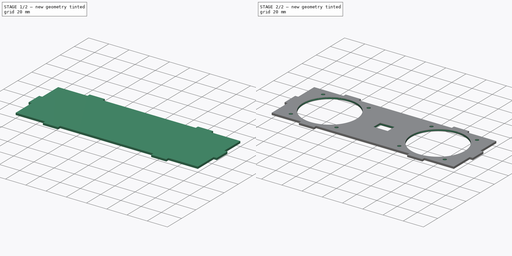
[diagram: build sequence overview — one tinted view per stage of 2, left to right]
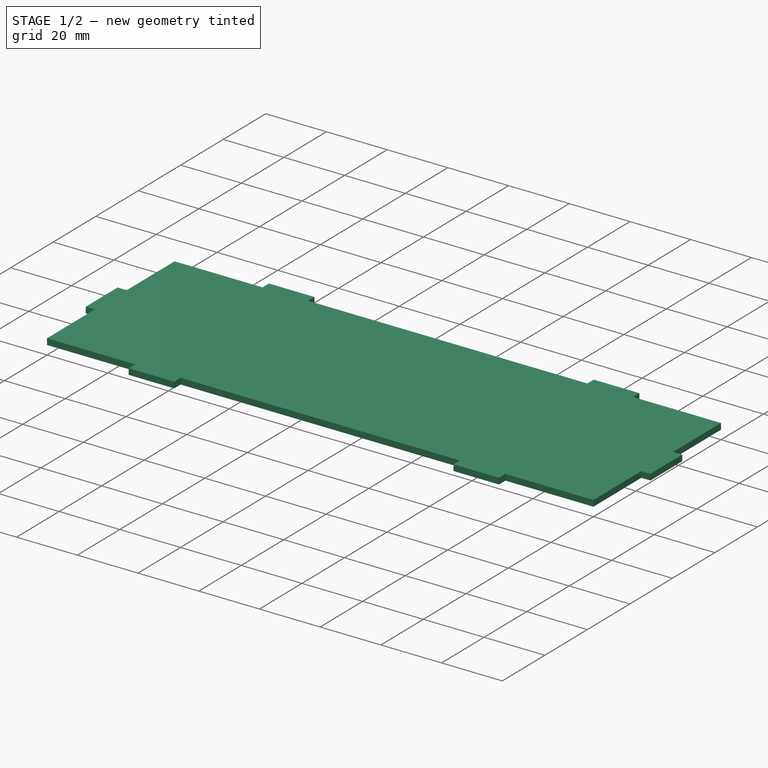
[diagram: stage 1 of 2 — iso view after this stage's code; geometry added in this stage tinted green]
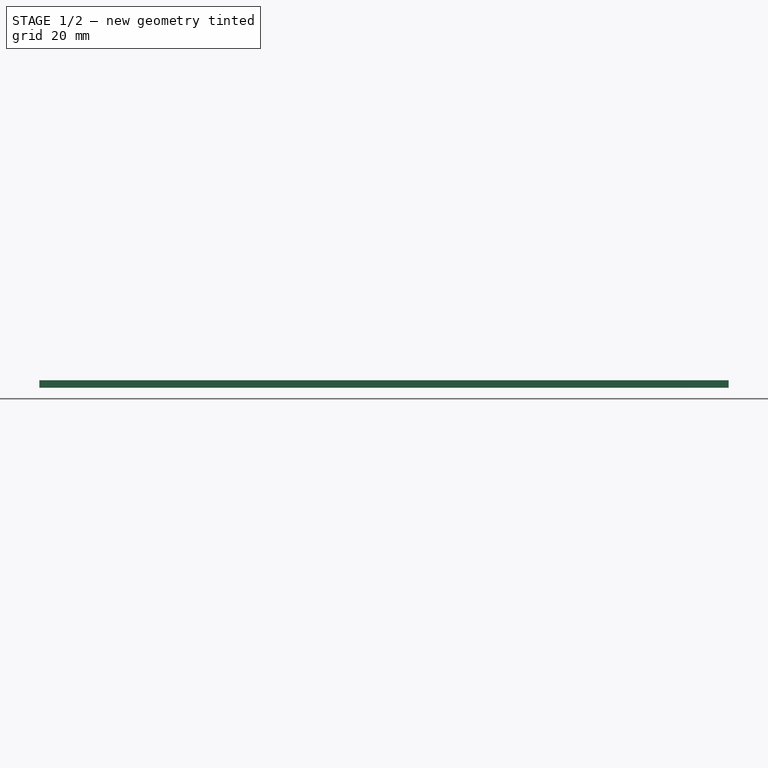
[diagram: stage 1 of 2 — front view after this stage's code; geometry added in this stage tinted green]
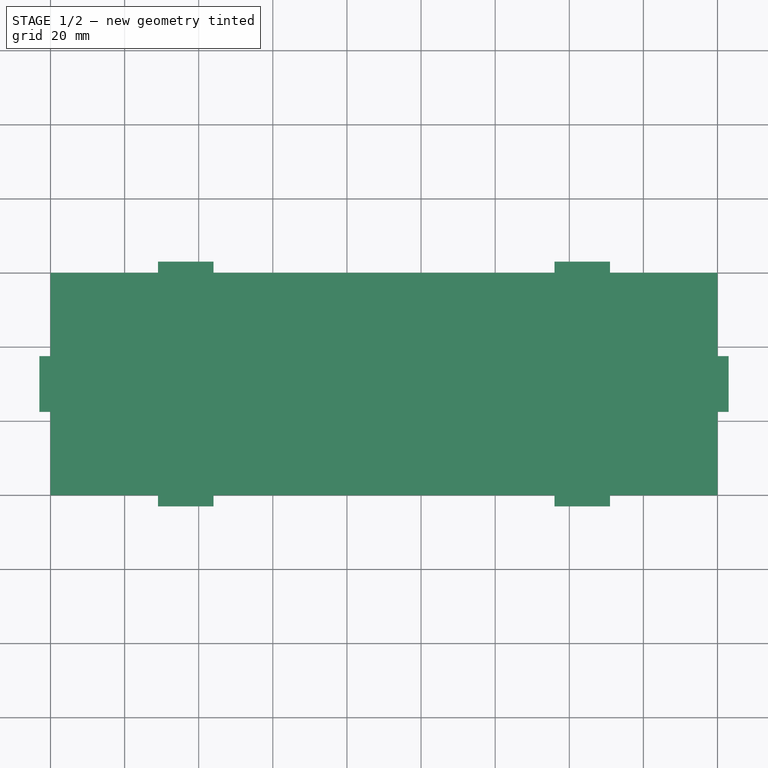
[diagram: stage 1 of 2 — top view after this stage's code; geometry added in this stage tinted green]
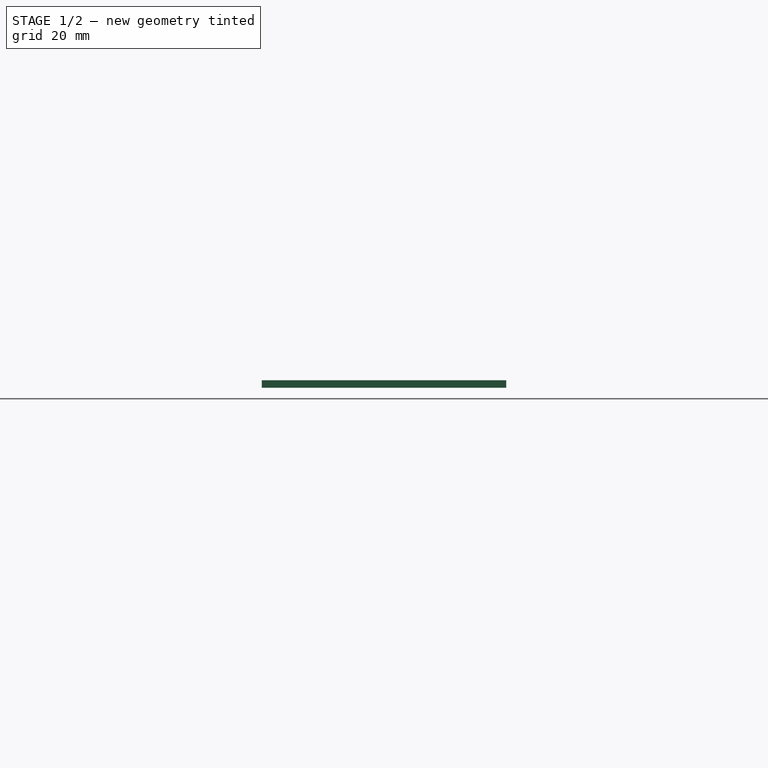
[diagram: stage 1 of 2 — right view after this stage's code; geometry added in this stage tinted green]
FCSTD DOCUMENT  (FreeCAD 1.0R39109 (Git))
Label: aimiya_bt_spk_front
License: All rights reserved
LicenseURL: https://en.wikipedia.org/wiki/All_rights_reserved
objects: Sketcher::SketchObject×2, PartDesign::Pad×1, PartDesign::Groove×1, PartDesign::Body×1
note: 11 computed .brp shape members not serialized (recipe doc carries the construction recipe); baked Part::Feature solids carry a one-line shape summary decoded from their .brp

FEATURE [Sketcher::SketchObject] Sketch  label="holes"
  ArcFitTolerance = 1e-06
  AttachmentSupport = -> [XY_Plane001]
  FullyConstrained = true
  MakeInternals = false
  MapMode = 5
  sketch-geometry (34):
    g0: LineSegment [constr] StartX=0 StartY=0 StartZ=0 EndX=180 EndY=0 EndZ=0
    g1: LineSegment [constr] StartX=180 StartY=0 StartZ=0 EndX=180 EndY=60 EndZ=0
    g2: LineSegment [constr] StartX=180 StartY=60 StartZ=0 EndX=0 EndY=60 EndZ=0
    g3: LineSegment [constr] StartX=0 StartY=60 StartZ=0 EndX=0 EndY=0 EndZ=0
    g4: LineSegment [constr] StartX=0 StartY=30 StartZ=0 EndX=180 EndY=30 EndZ=0
    g5: LineSegment [constr] StartX=90 StartY=60 StartZ=0 EndX=90 EndY=0 EndZ=0
    g6: LineSegment [constr] StartX=10 StartY=3.5 StartZ=0 EndX=63 EndY=3.5 EndZ=0
    g7: LineSegment [constr] StartX=63 StartY=3.5 StartZ=0 EndX=63 EndY=56.5 EndZ=0
    g8: LineSegment [constr] StartX=63 StartY=56.5 StartZ=0 EndX=10 EndY=56.5 EndZ=0
    g9: LineSegment [constr] StartX=10 StartY=56.5 StartZ=0 EndX=10 EndY=3.5 EndZ=0
    g10: GeomPoint [constr] X=36.5 Y=30 Z=0
    g11: Circle CenterX=14 CenterY=52.7541 CenterZ=0 NormalX=0 NormalY=0 NormalZ=1 AngleXU=0 Radius=1.75
    g12: LineSegment [constr] StartX=36.5 StartY=56.5 StartZ=0 EndX=36.5 EndY=3.5 EndZ=0
    g13: Circle CenterX=59 CenterY=52.7541 CenterZ=0 NormalX=0 NormalY=0 NormalZ=1 AngleXU=0 Radius=1.75
    g14: Circle CenterX=14 CenterY=7.24588 CenterZ=0 NormalX=0 NormalY=0 NormalZ=1 AngleXU=0 Radius=1.75
    g15: Circle CenterX=59 CenterY=7.24588 CenterZ=0 NormalX=0 NormalY=0 NormalZ=1 AngleXU=0 Radius=1.75
    g16: Circle CenterX=36.5 CenterY=30 CenterZ=0 NormalX=0 NormalY=0 NormalZ=1 AngleXU=0 Radius=26.5
    g17: LineSegment [constr] StartX=180 StartY=30 StartZ=0 EndX=0 EndY=30 EndZ=0
    g18: LineSegment [constr] StartX=170 StartY=3.5 StartZ=0 EndX=117 EndY=3.5 EndZ=0
    g19: LineSegment [constr] StartX=117 StartY=3.5 StartZ=0 EndX=117 EndY=56.5 EndZ=0
    g20: LineSegment [constr] StartX=117 StartY=56.5 StartZ=0 EndX=170 EndY=56.5 EndZ=0
    g21: LineSegment [constr] StartX=170 StartY=56.5 StartZ=0 EndX=170 EndY=3.5 EndZ=0
    g22: GeomPoint [constr] X=143.5 Y=30 Z=0
    g23: Circle CenterX=166 CenterY=52.7541 CenterZ=0 NormalX=0 NormalY=0 NormalZ=1 AngleXU=0 Radius=1.75
    g24: LineSegment [constr] StartX=143.5 StartY=56.5 StartZ=0 EndX=143.5 EndY=3.5 EndZ=0
    g25: Circle CenterX=121 CenterY=52.7541 CenterZ=0 NormalX=0 NormalY=0 NormalZ=1 AngleXU=0 Radius=1.75
    g26: Circle CenterX=166 CenterY=7.24588 CenterZ=0 NormalX=0 NormalY=0 NormalZ=1 AngleXU=0 Radius=1.75
    g27: Circle CenterX=121 CenterY=7.24588 CenterZ=0 NormalX=0 NormalY=0 NormalZ=1 AngleXU=0 Radius=1.75
    g28: Circle CenterX=143.5 CenterY=30 CenterZ=0 NormalX=0 NormalY=0 NormalZ=1 AngleXU=0 Radius=26.5
    g29: LineSegment StartX=83 StartY=25.25 StartZ=0 EndX=97 EndY=25.25 EndZ=0
    g30: LineSegment StartX=97 StartY=25.25 StartZ=0 EndX=97 EndY=34.75 EndZ=0
    g31: LineSegment StartX=97 StartY=34.75 StartZ=0 EndX=83 EndY=34.75 EndZ=0
    g32: LineSegment StartX=83 StartY=34.75 StartZ=0 EndX=83 EndY=25.25 EndZ=0
    g33: GeomPoint [constr] X=90 Y=30 Z=0
  constraints (76):
    c: Coincident(g0,g1)
    c: Coincident(g1,g2)
    c: Coincident(g2,g3)
    c: Coincident(g3,g0)
    c: Horizontal(g0)
    c: Horizontal(g2)
    c: Vertical(g1)
    c: Vertical(g3)
    c: Coincident(g0,g-1)
    c: DistanceX(g0,g0) = 180
    c: DistanceY(g3,g3) = 60
    c: Symmetric(g3,g3,g4)
    c: Symmetric(g1,g1,g4)
    c: Symmetric(g2,g2,g5)
    c: Symmetric(g0,g0,g5)
    c: Coincident(g6,g7)
    c: Coincident(g7,g8)
    c: Coincident(g8,g9)
    c: Coincident(g9,g6)
    c: Horizontal(g6)
    c: Horizontal(g8)
    c: Vertical(g7)
    c: Vertical(g9)
    c: Symmetric(g8,g6,g10)
    c: Distance(g7,g9) = 53
    c: Distance(g6,g8) = 53
    c: PointOnObject(g10,g4)
    c: Distance(g3,g9) = 10
    c: Diameter(g11) = 3.5
    c: Symmetric(g8,g8,g12)
    c: Symmetric(g6,g6,g12)
    c: Distance(g11,g10) = 32
    c: Distance(g11,g12) = 22.5
    c: Equal(g11,g13)
    c: Symmetric(g11,g13,g12)
    c: Equal(g11,g14)
    c: Symmetric(g11,g14,g4)
    c: Equal(g14,g15)
    c: Symmetric(g14,g15,g12)
    c: Coincident(g16,g10)
    c: PointOnObject(g12,g16)
    c: Symmetric(g4,g17,g5)
    c: Symmetric(g4,g17,g5)
    c: Symmetric(g6,g18,g5)
    c: Symmetric(g6,g18,g5)
    c: Symmetric(g7,g19,g5)
    c: Symmetric(g7,g19,g5)
    c: Symmetric(g8,g20,g5)
    c: Symmetric(g8,g20,g5)
    c: Symmetric(g9,g21,g5)
    c: Symmetric(g9,g21,g5)
    c: Symmetric(g10,g22,g5)
    c: Equal(g11,g23)
    c: Symmetric(g11,g23,g5)
    c: Symmetric(g12,g24,g5)
    c: Symmetric(g12,g24,g5)
    c: Equal(g13,g25)
    c: Symmetric(g13,g25,g5)
    c: Equal(g14,g26)
    c: Symmetric(g14,g26,g5)
    c: Equal(g15,g27)
    c: Symmetric(g15,g27,g5)
    c: Equal(g16,g28)
    c: Symmetric(g16,g28,g5)
    c: Coincident(g29,g30)
    c: Coincident(g30,g31)
    c: Coincident(g31,g32)
    c: Coincident(g32,g29)
    c: Horizontal(g29)
    c: Horizontal(g31)
    c: Vertical(g30)
    c: Vertical(g32)
    c: Symmetric(g31,g29,g33)
    c: Distance(g30,g32) = 14
    c: Distance(g29,g31) = 9.5
    c: Symmetric(g4,g4,g33)
FEATURE [Sketcher::SketchObject] Sketch001
  ArcFitTolerance = 1e-06
  AttachmentSupport = -> [XY_Plane001]
  FullyConstrained = true
  MakeInternals = false
  MapMode = 5
  sketch-geometry (33):
    g0: LineSegment StartX=0 StartY=0 StartZ=0 EndX=180 EndY=0 EndZ=0
    g1: LineSegment StartX=180 StartY=0 StartZ=0 EndX=180 EndY=60 EndZ=0
    g2: LineSegment StartX=180 StartY=60 StartZ=0 EndX=0 EndY=60 EndZ=0
    g3: LineSegment StartX=0 StartY=60 StartZ=0 EndX=0 EndY=0 EndZ=0
    g4: LineSegment [constr] StartX=0 StartY=30 StartZ=0 EndX=180 EndY=30 EndZ=0
    g5: LineSegment [constr] StartX=90 StartY=60 StartZ=0 EndX=90 EndY=0 EndZ=0
    g6: LineSegment [constr] StartX=36.5 StartY=60 StartZ=0 EndX=36.5 EndY=0 EndZ=0
    g7: LineSegment StartX=29 StartY=60 StartZ=0 EndX=29 EndY=63 EndZ=0
    g8: LineSegment StartX=29 StartY=63 StartZ=0 EndX=44 EndY=63 EndZ=0
    g9: LineSegment StartX=44 StartY=60 StartZ=0 EndX=44 EndY=63 EndZ=0
    g10: LineSegment StartX=29 StartY=60 StartZ=0 EndX=44 EndY=60 EndZ=0
    g11: LineSegment [constr] StartX=36.5 StartY=63 StartZ=0 EndX=36.5 EndY=60 EndZ=0
    g12: LineSegment StartX=29 StartY=3e-16 StartZ=0 EndX=29 EndY=-3 EndZ=0
    g13: LineSegment StartX=29 StartY=-3 StartZ=0 EndX=44 EndY=-3 EndZ=0
    g14: LineSegment StartX=44 StartY=4.6e-15 StartZ=0 EndX=44 EndY=-3 EndZ=0
    g15: LineSegment StartX=29 StartY=3e-16 StartZ=0 EndX=44 EndY=4.6e-15 EndZ=0
    g16: LineSegment StartX=151 StartY=60 StartZ=0 EndX=151 EndY=63 EndZ=0
    g17: LineSegment StartX=151 StartY=63 StartZ=0 EndX=136 EndY=63 EndZ=0
    g18: LineSegment StartX=136 StartY=60 StartZ=0 EndX=136 EndY=63 EndZ=0
    g19: LineSegment StartX=151 StartY=60 StartZ=0 EndX=136 EndY=60 EndZ=0
    g20: LineSegment StartX=151 StartY=3e-16 StartZ=0 EndX=151 EndY=-3 EndZ=0
    g21: LineSegment StartX=151 StartY=-3 StartZ=0 EndX=136 EndY=-3 EndZ=0
    g22: LineSegment StartX=136 StartY=4.6e-15 StartZ=0 EndX=136 EndY=-3 EndZ=0
    g23: LineSegment StartX=151 StartY=3e-16 StartZ=0 EndX=136 EndY=4.6e-15 EndZ=0
    g24: LineSegment StartX=0 StartY=37.5 StartZ=0 EndX=-3 EndY=37.5 EndZ=0
    g25: LineSegment StartX=-3 StartY=37.5 StartZ=0 EndX=-3 EndY=22.5 EndZ=0
    g26: LineSegment StartX=-3 StartY=22.5 StartZ=0 EndX=0 EndY=22.5 EndZ=0
    g27: LineSegment [constr] StartX=-3 StartY=30 StartZ=0 EndX=0 EndY=30 EndZ=0
    g28: LineSegment StartX=0 StartY=37.5 StartZ=0 EndX=0 EndY=22.5 EndZ=0
    g29: LineSegment StartX=180 StartY=37.5 StartZ=0 EndX=183 EndY=37.5 EndZ=0
    g30: LineSegment StartX=183 StartY=37.5 StartZ=0 EndX=183 EndY=22.5 EndZ=0
    g31: LineSegment StartX=183 StartY=22.5 StartZ=0 EndX=180 EndY=22.5 EndZ=0
    g32: LineSegment StartX=180 StartY=37.5 StartZ=0 EndX=180 EndY=22.5 EndZ=0
  constraints (79):
    c: Coincident(g0,g1)
    c: Coincident(g1,g2)
    c: Coincident(g2,g3)
    c: Coincident(g3,g0)
    c: Horizontal(g0)
    c: Horizontal(g2)
    c: Vertical(g1)
    c: Vertical(g3)
    c: Distance(g1,g3) = 180
    c: Distance(g0,g2) = 60
    c: Coincident(g0,g-1)
    c: Symmetric(g3,g3,g4)
    c: Symmetric(g1,g1,g4)
    c: Symmetric(g2,g2,g5)
    c: Symmetric(g0,g0,g5)
    c: PointOnObject(g6,g2)
    c: PointOnObject(g6,g0)
    c: Vertical(g6)
    c: Distance(g5,g6) = 53.5
    c: Distance(g7) = 3
    c: Vertical(g7)
    c: PointOnObject(g7,g2)
    c: Distance(g8) = 15
    c: Horizontal(g8)
    c: Coincident(g8,g7)
    c: Distance(g9) = 3
    c: Vertical(g9)
    c: Coincident(g8,g9)
    c: Coincident(g10,g7)
    c: Coincident(g10,g9)
    c: Vertical(g11)
    c: Symmetric(g8,g8,g11)
    c: Coincident(g11,g6)
    c: Symmetric(g7,g12,g4)
    c: Symmetric(g7,g12,g4)
    c: Symmetric(g8,g13,g4)
    c: Symmetric(g8,g13,g4)
    c: Symmetric(g9,g14,g4)
    c: Symmetric(g9,g14,g4)
    c: Symmetric(g10,g15,g4)
    c: Symmetric(g10,g15,g4)
    c: Symmetric(g7,g16,g5)
    c: Symmetric(g7,g16,g5)
    c: Symmetric(g8,g17,g5)
    c: Symmetric(g8,g17,g5)
    c: Symmetric(g9,g18,g5)
    c: Symmetric(g9,g18,g5)
    c: Symmetric(g10,g19,g5)
    c: Symmetric(g10,g19,g5)
    c: Symmetric(g12,g20,g5)
    c: Symmetric(g12,g20,g5)
    c: Symmetric(g13,g21,g5)
    c: Symmetric(g13,g21,g5)
    c: Symmetric(g14,g22,g5)
    c: Symmetric(g14,g22,g5)
    c: Symmetric(g15,g23,g5)
    c: Symmetric(g15,g23,g5)
    c: Distance(g24) = 3
    c: Horizontal(g24)
    c: PointOnObject(g24,g3)
    c: Distance(g25) = 15
    c: Vertical(g25)
    c: Coincident(g25,g24)
    c: Horizontal(g26)
    c: Coincident(g26,g25)
    c: PointOnObject(g26,g3)
    c: Horizontal(g27)
    c: Symmetric(g25,g25,g27)
    c: Coincident(g27,g4)
    c: Coincident(g28,g24)
    c: Coincident(g28,g26)
    c: Symmetric(g24,g29,g5)
    c: Symmetric(g24,g29,g5)
    c: Symmetric(g25,g30,g5)
    c: Symmetric(g25,g30,g5)
    c: Symmetric(g26,g31,g5)
    c: Symmetric(g26,g31,g5)
    c: Symmetric(g28,g32,g5)
    c: Symmetric(g28,g32,g5)
FEATURE [PartDesign::Pad] Pad
  Direction = (0,0,1)
  Length = 2
  Length2 = 10
  Profile = -> Sketch001
  ReferenceAxis = -> Sketch001 [N_Axis]
  Refine = true
  Suppressed = false
  Type = 0
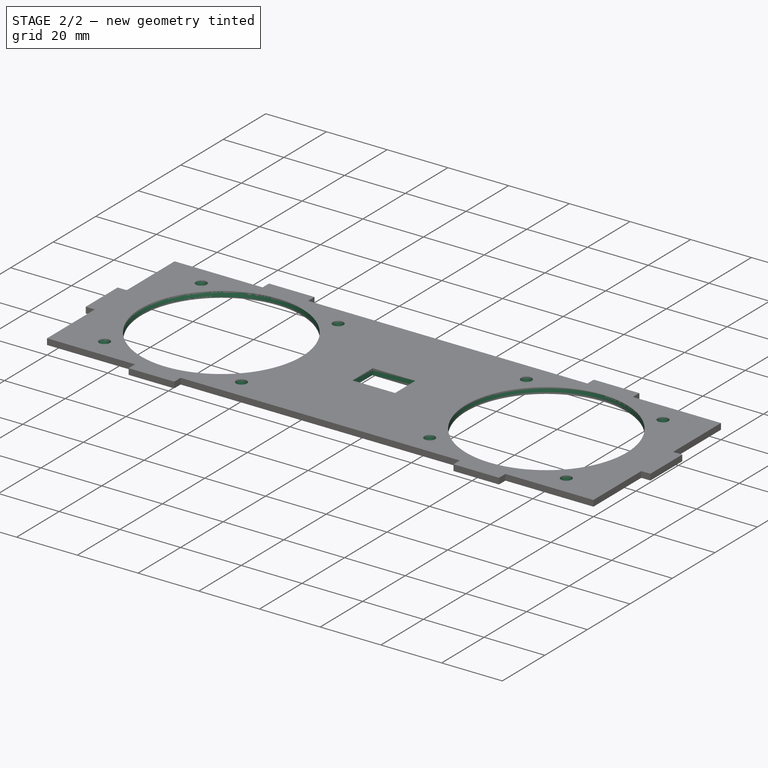
[diagram: stage 2 of 2 — iso view after this stage's code; geometry added in this stage tinted green]
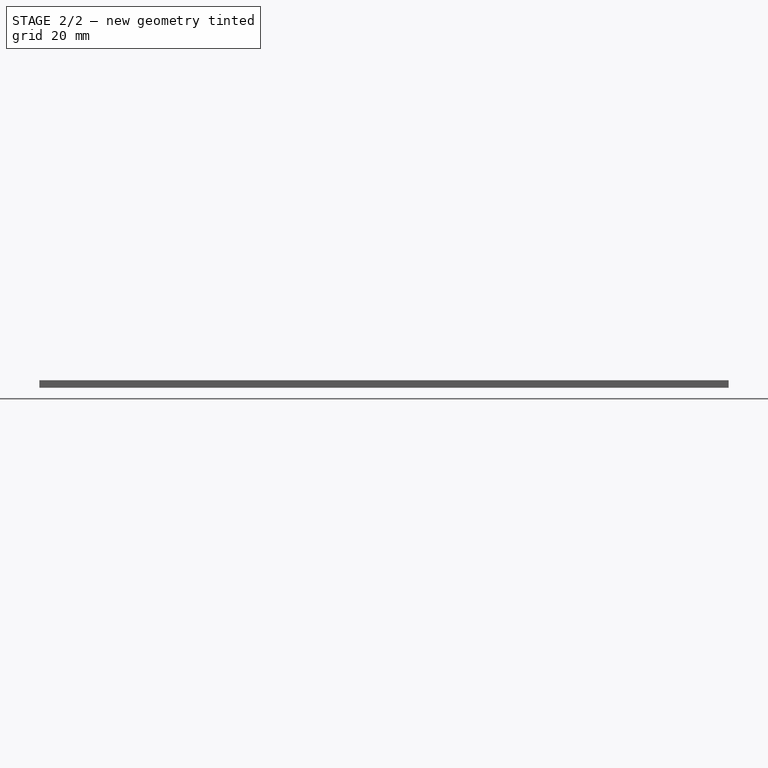
[diagram: stage 2 of 2 — front view after this stage's code; geometry added in this stage tinted green]
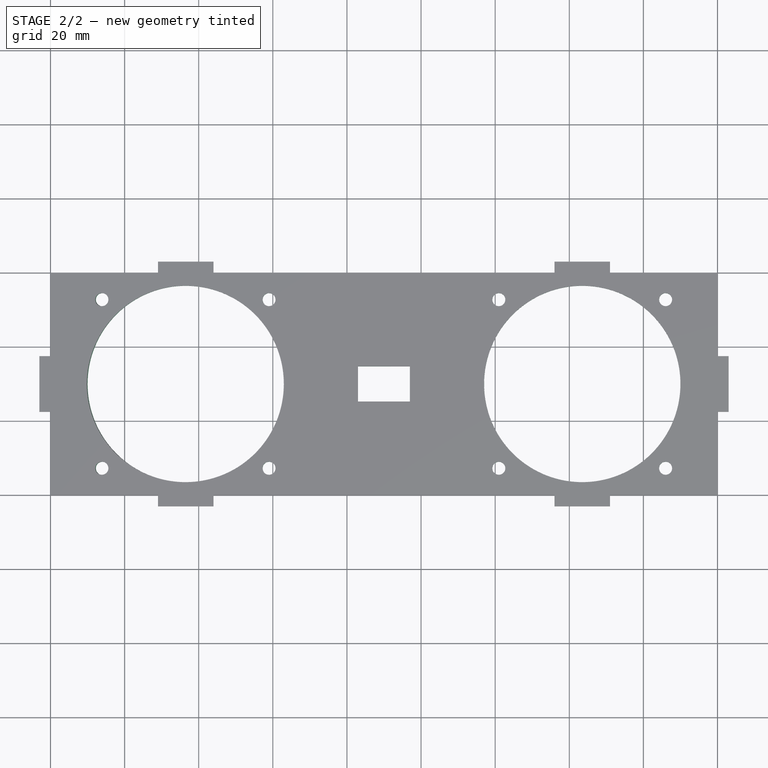
[diagram: stage 2 of 2 — top view after this stage's code; geometry added in this stage tinted green]
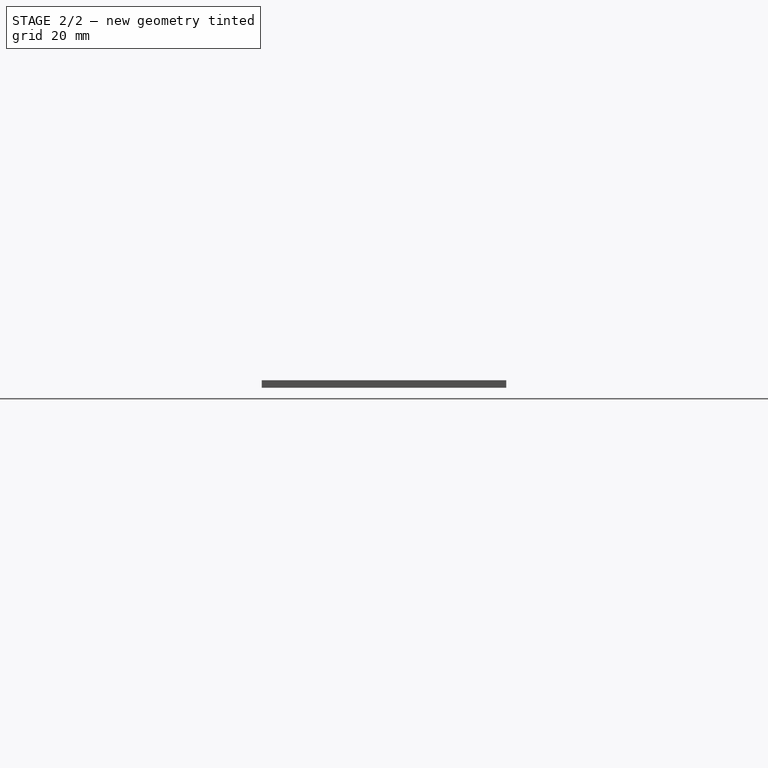
[diagram: stage 2 of 2 — right view after this stage's code; geometry added in this stage tinted green]
FEATURE [PartDesign::Groove] Groove
  Angle = 360
  Angle2 = 60
  Axis = (0,1,0)
  Base = (0,0,0)
  BaseFeature = -> Pad
  Profile = -> Sketch
  ReferenceAxis = -> Sketch [V_Axis]
  Refine = true
  Suppressed = false
  Type = 0
FEATURE [PartDesign::Body] Body001  label="main"
  AllowCompound = false
  Group = -> [Sketch,Sketch001,Pad,Groove]
  Origin = -> Origin001
  Tip = -> Groove
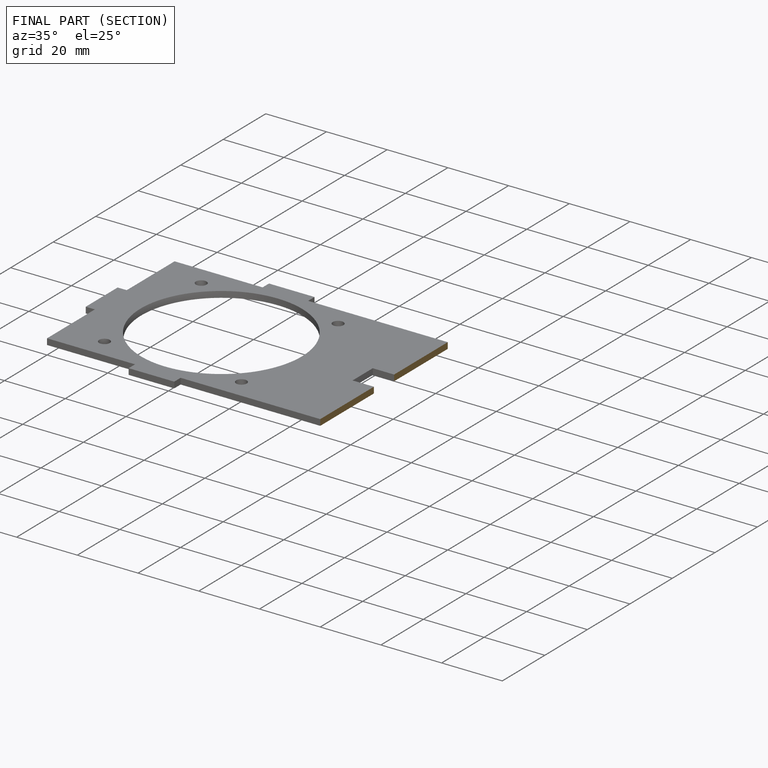
[diagram: finished part — half-section view (interior)]
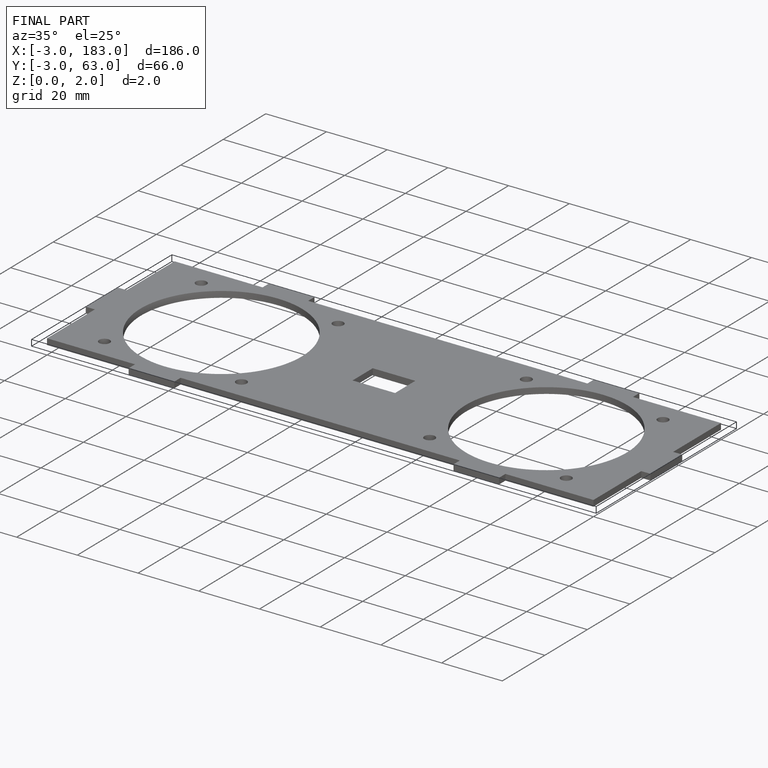
[diagram: finished part — iso view with bounding-box wireframe]
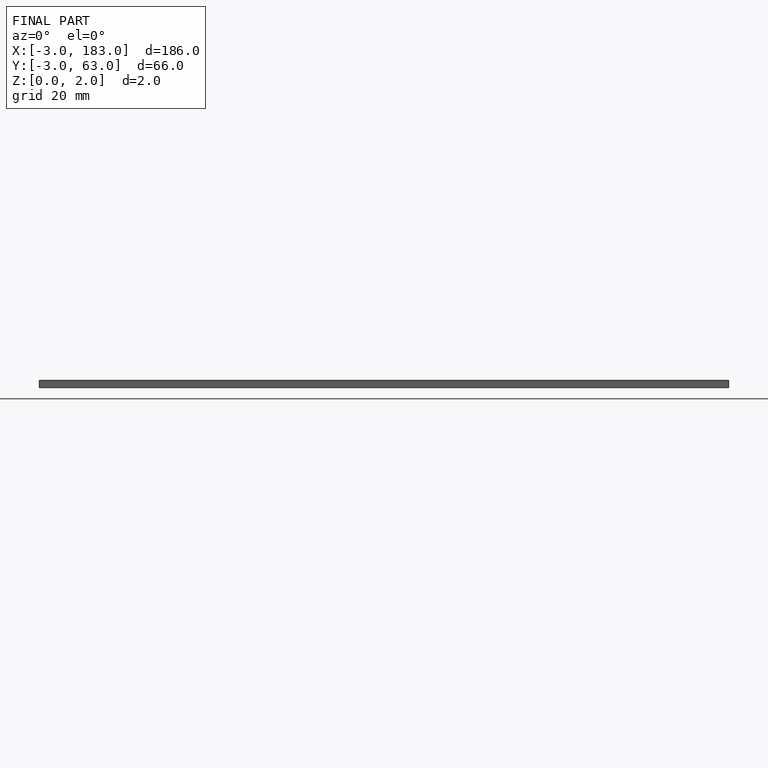
[diagram: finished part — front view with bounding-box wireframe]
